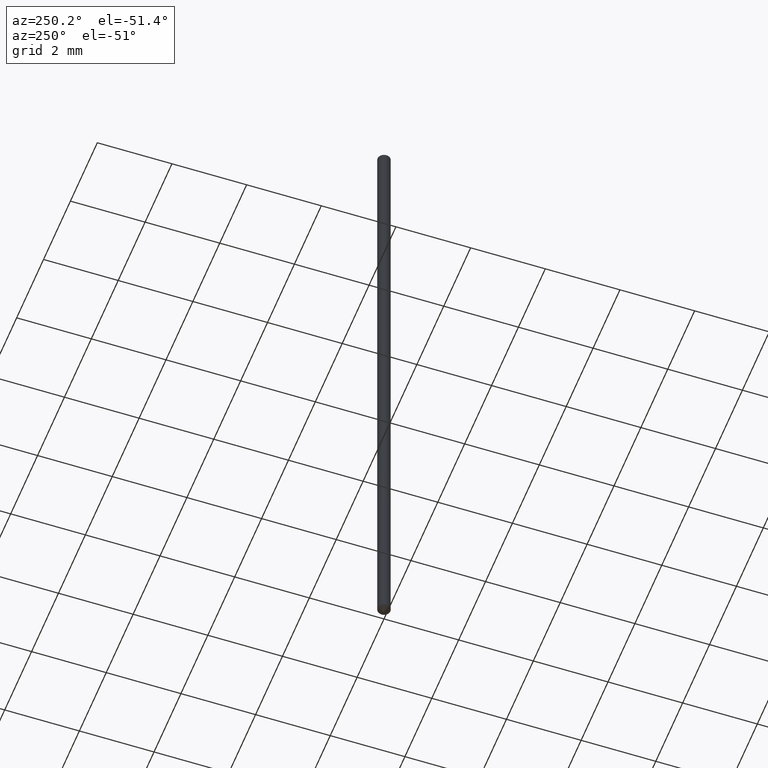
[diagram: clean part render]
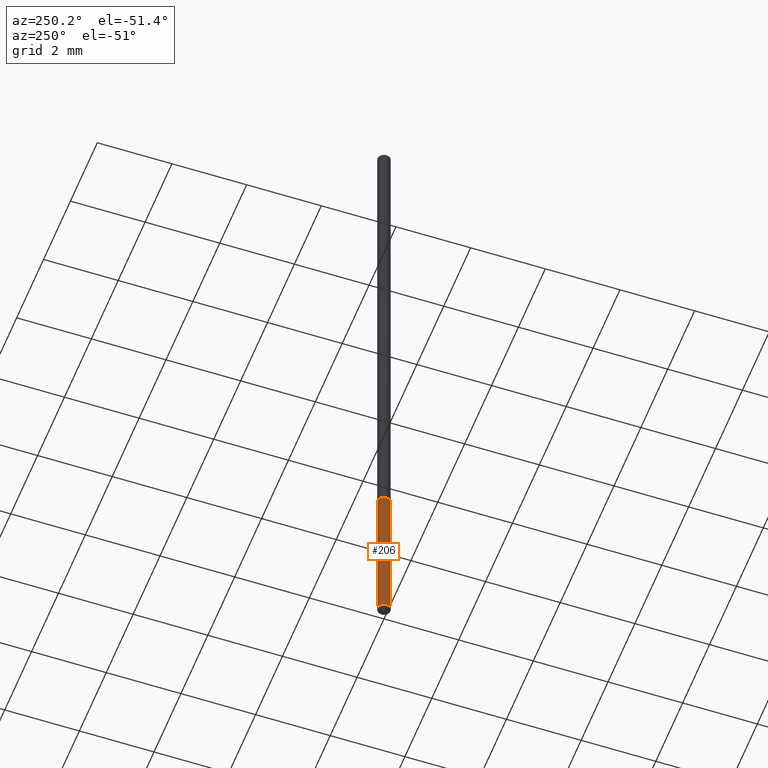
[diagram: same view with one face highlighted and labeled with its STEP entity id]
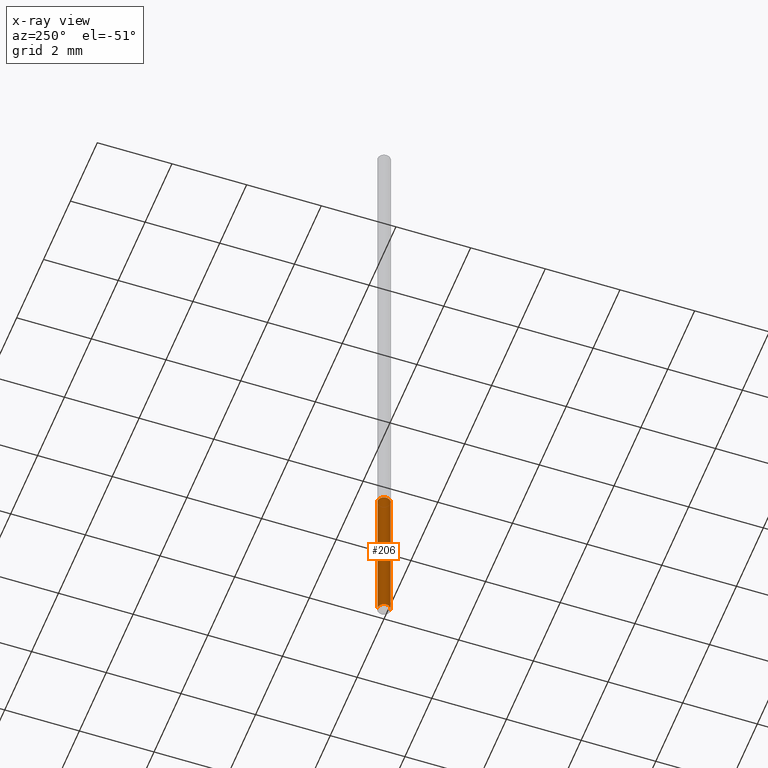
[diagram: x-ray of the same camera — body ghosted, the highlighted face saturated]
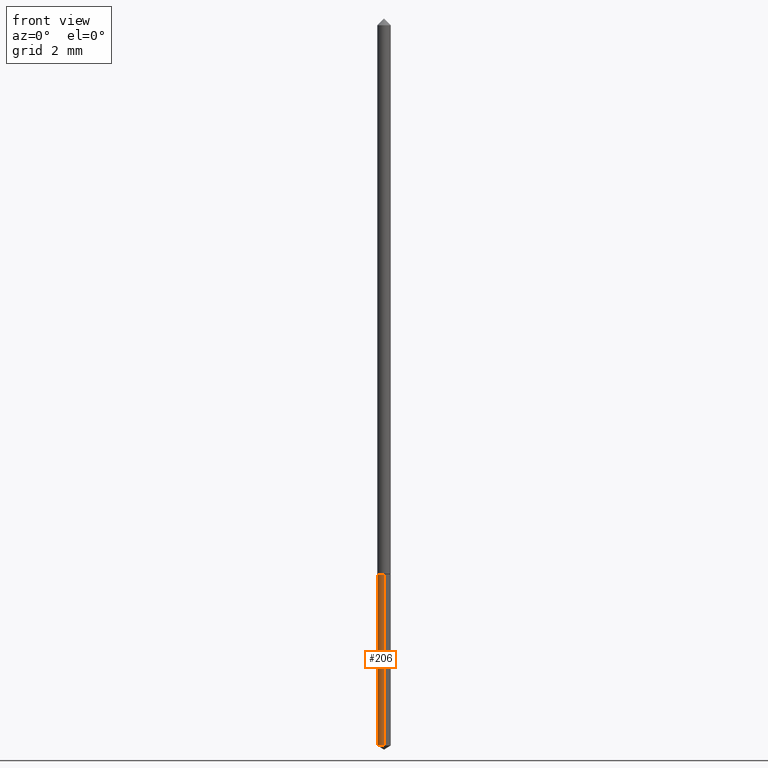
[diagram: same view with one face highlighted and labeled with its STEP entity id]
A machine part, auxiliary view. The second image highlights one B-rep face of the part: STEP entity #206.
The next image is the same camera in x-ray: the body ghosted, the highlighted face saturated — about 0% of this face is hidden behind the body in this view.
A second angle (front view) of the same face is appended — the face is thin or edge-on in the first view.
In plain terms, the highlighted cylindrical surface (edge-blend (fillet) strip) has radius 0.1714 mm, axis along (-0, 0, 1).
Its self-contained STEP definition (entity closure, byte-faithful):
#33 = CARTESIAN_POINT ( 'NONE',  ( 4.796163466382499209E-17, 0.006749999999997394369, -0.7459441908215641570 ) ) ;
#34 = AXIS2_PLACEMENT_3D ( 'NONE', #50, #281, #160 ) ;
#50 = CARTESIAN_POINT ( 'NONE',  ( 1.408590032362638810E-29, -2.011093251173652181E-15, -0.5760000000000000675 ) ) ;
#55 = FACE_OUTER_BOUND ( 'NONE', #264, .T. ) ;
#61 = ORIENTED_EDGE ( 'NONE', *, *, #282, .F. ) ;
#74 = LINE ( 'NONE', #107, #260 ) ;
#75 = ORIENTED_EDGE ( 'NONE', *, *, #109, .F. ) ;
#82 = EDGE_CURVE ( 'NONE', #97, #244, #283, .T. ) ;
#97 = VERTEX_POINT ( 'NONE', #334 ) ;
#103 = CARTESIAN_POINT ( 'NONE',  ( 4.796163466382502906E-17, 0.006749999999997988512, -0.5760000000000000675 ) ) ;
#107 = CARTESIAN_POINT ( 'NONE',  ( 4.796163466382084440E-17, 0.006749999999997988512, -0.5760000000000000675 ) ) ;
#109 = EDGE_CURVE ( 'NONE', #327, #224, #74, .T. ) ;
#115 = DIRECTION ( 'NONE',  ( -2.445574428744949876E-29, 3.491330081325830103E-15, 1.000000000000000000 ) ) ;
#118 = CARTESIAN_POINT ( 'NONE',  ( -4.713499807436820261E-17, -0.006750000000002011336, -0.5760000000000000675 ) ) ;
#119 = ORIENTED_EDGE ( 'NONE', *, *, #169, .T. ) ;
#124 = CIRCLE ( 'NONE', #229, 0.006749999999999999924 ) ;
#127 = ORIENTED_EDGE ( 'NONE', *, *, #82, .T. ) ;
#137 = VECTOR ( 'NONE', #138, 39.37007874015748143 ) ;
#138 = DIRECTION ( 'NONE',  ( -2.445574428744950156E-29, 3.491330081325830103E-15, 1.000000000000000000 ) ) ;
#140 = CARTESIAN_POINT ( 'NONE',  ( 1.408590032362638810E-29, -2.011093251173652181E-15, -0.5760000000000000675 ) ) ;
#160 = DIRECTION ( 'NONE',  ( -6.982962677686265133E-15, -1.000000000000000000, 0.000000000000000000 ) ) ;
#169 = EDGE_CURVE ( 'NONE', #327, #97, #124, .T. ) ;
#190 = DIRECTION ( 'NONE',  ( -6.982962677686265133E-15, -1.000000000000000000, 0.000000000000000000 ) ) ;
#198 = CIRCLE ( 'NONE', #290, 0.006749999999999999924 ) ;
#201 = DIRECTION ( 'NONE',  ( -6.982962677686265133E-15, -1.000000000000000000, 0.000000000000000000 ) ) ;
#206 = ADVANCED_FACE ( 'NONE', ( #55 ), #360, .T. ) ;
#224 = VERTEX_POINT ( 'NONE', #103 ) ;
#229 = AXIS2_PLACEMENT_3D ( 'NONE', #278, #251, #190 ) ;
#244 = VERTEX_POINT ( 'NONE', #118 ) ;
#251 = DIRECTION ( 'NONE',  ( -2.445574428744949876E-29, 3.491330081325830103E-15, 1.000000000000000000 ) ) ;
#260 = VECTOR ( 'NONE', #300, 39.37007874015748143 ) ;
#264 = EDGE_LOOP ( 'NONE', ( #75, #119, #127, #61 ) ) ;
#278 = CARTESIAN_POINT ( 'NONE',  ( 1.824201199749608100E-29, -2.604424516735556116E-15, -0.7459441908215641570 ) ) ;
#281 = DIRECTION ( 'NONE',  ( -2.445574428744949876E-29, 3.491330081325830103E-15, 1.000000000000000000 ) ) ;
#282 = EDGE_CURVE ( 'NONE', #224, #244, #198, .T. ) ;
#283 = LINE ( 'NONE', #332, #137 ) ;
#290 = AXIS2_PLACEMENT_3D ( 'NONE', #140, #115, #201 ) ;
#300 = DIRECTION ( 'NONE',  ( -2.445574428744950156E-29, 3.491330081325830103E-15, 1.000000000000000000 ) ) ;
#327 = VERTEX_POINT ( 'NONE', #33 ) ;
#332 = CARTESIAN_POINT ( 'NONE',  ( -4.713499807436820261E-17, -0.006750000000002011336, -0.5760000000000000675 ) ) ;
#334 = CARTESIAN_POINT ( 'NONE',  ( -4.713499807436404260E-17, -0.006750000000002602876, -0.7459441908215641570 ) ) ;
#360 = CYLINDRICAL_SURFACE ( 'NONE', #34, 0.006749999999999999924 ) ;